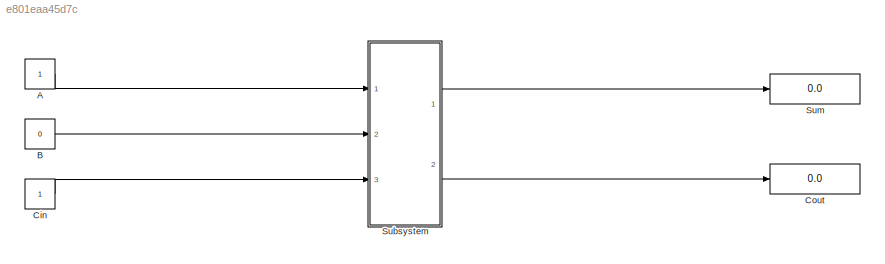
MODEL slx_e801eaa45d7c
KIND model
BLOCK [Constant] A
  OutDataTypeStr = boolean
BLOCK [Constant] B
  OutDataTypeStr = boolean
  Value = 0
BLOCK [Constant] Cin
  OutDataTypeStr = boolean
BLOCK [Display] Cout
  Decimation = 1
  Ports = [1]
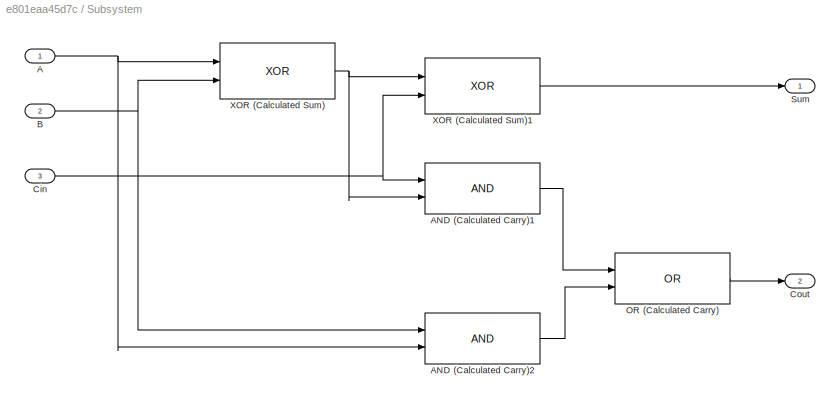
BLOCK [SubSystem] Subsystem
  Ports = [3, 2]
  RequestExecContextInheritance = off
BLOCK [Inport] Subsystem/A
  IconDisplay = Port number
  OutDataTypeStr = boolean
BLOCK [Logic] Subsystem/AND (Calculated Carry)1
  AllPortsSameDT = off
  OutDataTypeStr = boolean
  Ports = [2, 1]
BLOCK [Logic] Subsystem/AND (Calculated Carry)2
  AllPortsSameDT = off
  OutDataTypeStr = boolean
  Ports = [2, 1]
BLOCK [Inport] Subsystem/B
  IconDisplay = Port number
  OutDataTypeStr = boolean
  Port = 2
BLOCK [Inport] Subsystem/Cin
  IconDisplay = Port number
  OutDataTypeStr = boolean
  Port = 3
BLOCK [Outport] Subsystem/Cout
  IconDisplay = Port number
  Port = 2
BLOCK [Logic] Subsystem/OR (Calculated Carry)
  AllPortsSameDT = off
  Operator = OR
  OutDataTypeStr = boolean
  Ports = [2, 1]
BLOCK [Outport] Subsystem/Sum
  IconDisplay = Port number
BLOCK [Logic] Subsystem/XOR (Calculated Sum)
  AllPortsSameDT = off
  Operator = XOR
  OutDataTypeStr = boolean
  Ports = [2, 1]
BLOCK [Logic] Subsystem/XOR (Calculated Sum)1
  AllPortsSameDT = off
  Operator = XOR
  OutDataTypeStr = boolean
  Ports = [2, 1]
BLOCK [Display] Sum 
  Decimation = 1
  Ports = [1]
LINE A:1 -> Subsystem:1
LINE B:1 -> Subsystem:2
LINE Cin:1 -> Subsystem:3
NET Subsystem/A:1 -> Subsystem/AND (Calculated Carry)2:2, Subsystem/XOR (Calculated Sum):1
LINE Subsystem/AND (Calculated Carry)1:1 -> Subsystem/OR (Calculated Carry):1
LINE Subsystem/AND (Calculated Carry)2:1 -> Subsystem/OR (Calculated Carry):2
NET Subsystem/B:1 -> Subsystem/AND (Calculated Carry)2:1, Subsystem/XOR (Calculated Sum):2
NET Subsystem/Cin:1 -> Subsystem/AND (Calculated Carry)1:1, Subsystem/XOR (Calculated Sum)1:2
LINE Subsystem/OR (Calculated Carry):1 -> Subsystem/Cout:1
LINE Subsystem/XOR (Calculated Sum)1:1 -> Subsystem/Sum:1
NET Subsystem/XOR (Calculated Sum):1 -> Subsystem/AND (Calculated Carry)1:2, Subsystem/XOR (Calculated Sum)1:1
LINE Subsystem:1 -> Sum :1
LINE Subsystem:2 -> Cout:1
note: NET lines group one-source signal fan-out (src -> all destinations, sorted); 1:1 wires keep LINE
